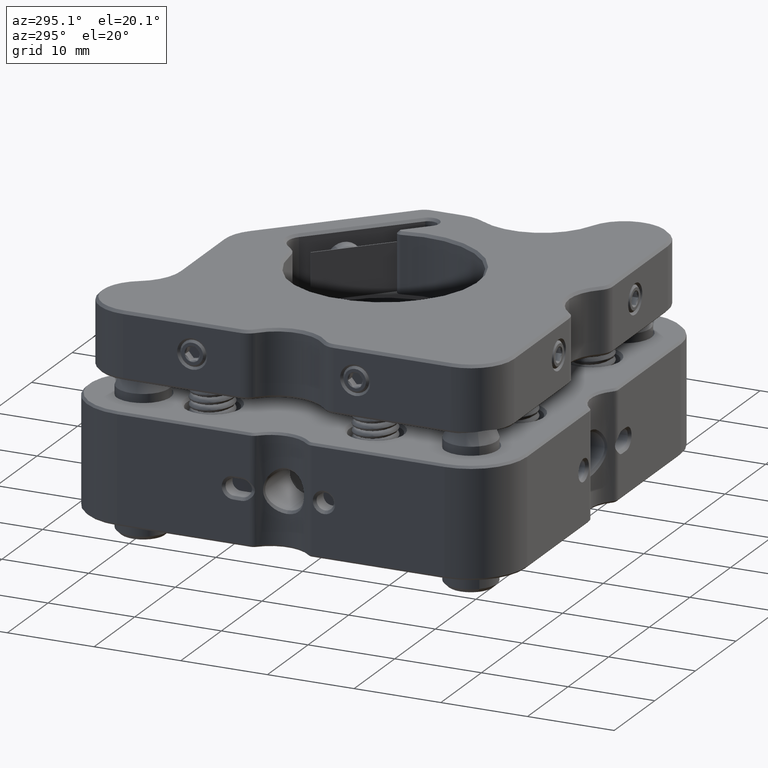
[diagram: clean part render]
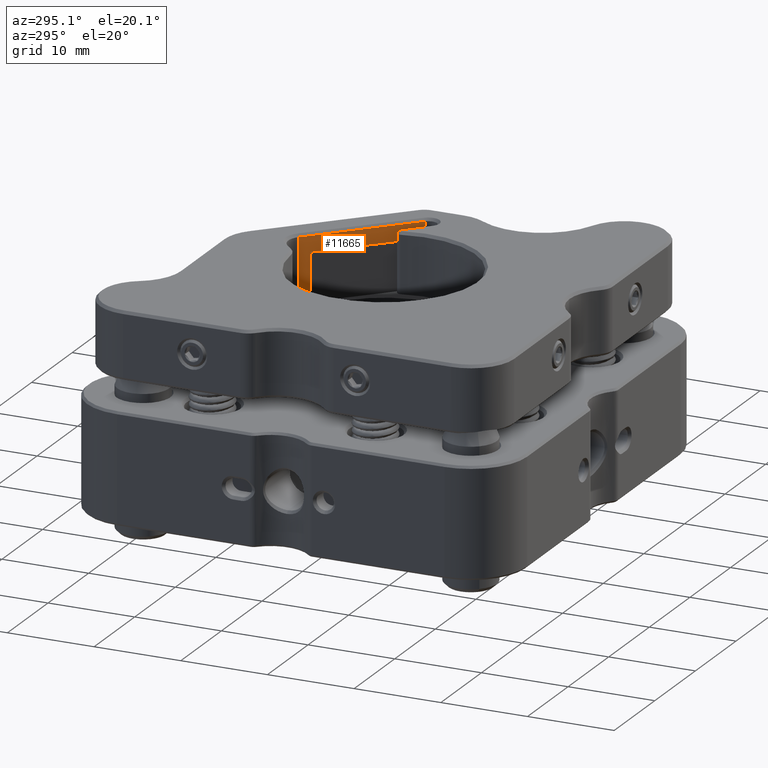
[diagram: same view with one face highlighted and labeled with its STEP entity id]
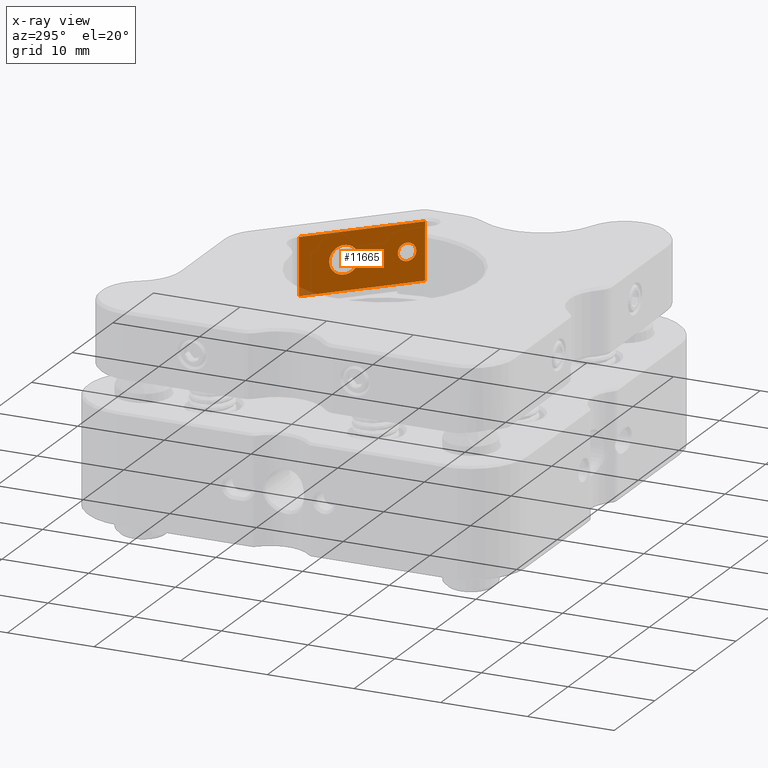
[diagram: x-ray of the same camera — body ghosted, the highlighted face saturated]
A machine part, auxiliary view. The second image highlights one B-rep face of the part: STEP entity #11665.
The next image is the same camera in x-ray: the body ghosted, the highlighted face saturated — about 1% of this face is hidden behind the body in this view.
In plain terms, the highlighted planar face has unit normal (0.7071, 0.7071, 0).
Its self-contained STEP definition (entity closure, byte-faithful):
#468 = ORIENTED_EDGE ( 'NONE', *, *, #14849, .F. ) ;
#799 = CARTESIAN_POINT ( 'NONE',  ( -55.25997654151805705, 9.793428919433670998, 0.3999999999999988565 ) ) ;
#1070 = EDGE_LOOP ( 'NONE', ( #468, #7938 ) ) ;
#1312 = EDGE_LOOP ( 'NONE', ( #22143, #9870, #20309, #5954 ) ) ;
#1343 = EDGE_LOOP ( 'NONE', ( #15341, #27693 ) ) ;
#2110 = CIRCLE ( 'NONE', #8079, 1.024999999999999689 ) ;
#2432 = AXIS2_PLACEMENT_3D ( 'NONE', #24816, #11437, #9273 ) ;
#2712 = LINE ( 'NONE', #6867, #9999 ) ;
#2866 = DIRECTION ( 'NONE',  ( 0.000000000000000000, 0.000000000000000000, 1.000000000000000000 ) ) ;
#4279 = VERTEX_POINT ( 'NONE', #799 ) ;
#4363 = DIRECTION ( 'NONE',  ( -0.7071067811865490160, -0.7071067811865460184, 0.000000000000000000 ) ) ;
#4623 = PLANE ( 'NONE',  #20893 ) ;
#4730 = VECTOR ( 'NONE', #13620, 1000.000000000000000 ) ;
#5257 = LINE ( 'NONE', #14047, #4730 ) ;
#5305 = VERTEX_POINT ( 'NONE', #14081 ) ;
#5346 = VERTEX_POINT ( 'NONE', #27152 ) ;
#5954 = ORIENTED_EDGE ( 'NONE', *, *, #6905, .F. ) ;
#6782 = CARTESIAN_POINT ( 'NONE',  ( -51.47695526217002282, 13.57645019878169634, 0.3999999999999988565 ) ) ;
#6867 = CARTESIAN_POINT ( 'NONE',  ( -59.96223663640859058, 5.091168824543163218, 3.549999999999997158 ) ) ;
#6905 = EDGE_CURVE ( 'NONE', #5305, #11609, #11259, .T. ) ;
#7182 = DIRECTION ( 'NONE',  ( 0.7071067811865460184, -0.7071067811865491270, -0.000000000000000000 ) ) ;
#7938 = ORIENTED_EDGE ( 'NONE', *, *, #27552, .F. ) ;
#8079 = AXIS2_PLACEMENT_3D ( 'NONE', #6782, #13708, #20293 ) ;
#8502 = FACE_BOUND ( 'NONE', #1070, .T. ) ;
#8650 = CARTESIAN_POINT ( 'NONE',  ( -61.37645019878168284, 3.676955262170072292, -22.63907140002025642 ) ) ;
#9273 = DIRECTION ( 'NONE',  ( 0.7071067811865495711, 0.7071067811865454633, 0.000000000000000000 ) ) ;
#9423 = CARTESIAN_POINT ( 'NONE',  ( -52.20173971288622994, 12.85166574806548567, 0.3999999999999987454 ) ) ;
#9637 = LINE ( 'NONE', #18414, #24491 ) ;
#9870 = ORIENTED_EDGE ( 'NONE', *, *, #19268, .T. ) ;
#9939 = CIRCLE ( 'NONE', #11777, 1.650000000000001021 ) ;
#9999 = VECTOR ( 'NONE', #13659, 1000.000000000000114 ) ;
#10664 = FACE_BOUND ( 'NONE', #1343, .T. ) ;
#10687 = CIRCLE ( 'NONE', #11643, 1.024999999999999689 ) ;
#10978 = CARTESIAN_POINT ( 'NONE',  ( -61.37645019878168284, 3.676955262170072292, -3.050000000000000711 ) ) ;
#11259 = LINE ( 'NONE', #10978, #26483 ) ;
#11437 = DIRECTION ( 'NONE',  ( 0.7071067811865460184, -0.7071067811865491270, -0.000000000000000000 ) ) ;
#11609 = VERTEX_POINT ( 'NONE', #21355 ) ;
#11643 = AXIS2_PLACEMENT_3D ( 'NONE', #22998, #7182, #27178 ) ;
#11665 = ADVANCED_FACE ( 'NONE', ( #10664, #8502, #19444 ), #4623, .F. ) ;
#11777 = AXIS2_PLACEMENT_3D ( 'NONE', #19734, #22321, #24330 ) ;
#13130 = DIRECTION ( 'NONE',  ( -0.7071067811865460184, 0.7071067811865490160, 0.000000000000000000 ) ) ;
#13620 = DIRECTION ( 'NONE',  ( 0.000000000000000000, 0.000000000000000000, 1.000000000000000000 ) ) ;
#13659 = DIRECTION ( 'NONE',  ( -0.7071067811865490160, -0.7071067811865460184, 0.000000000000000000 ) ) ;
#13708 = DIRECTION ( 'NONE',  ( 0.7071067811865460184, -0.7071067811865491270, -0.000000000000000000 ) ) ;
#13802 = CARTESIAN_POINT ( 'NONE',  ( -50.75217081145380860, 14.30123464949790701, 0.3999999999999988565 ) ) ;
#14047 = CARTESIAN_POINT ( 'NONE',  ( -50.06274169979690214, 14.99066376115480637, -22.63907140002025642 ) ) ;
#14081 = CARTESIAN_POINT ( 'NONE',  ( -50.06274169979690214, 14.99066376115480459, -3.050000000000000266 ) ) ;
#14797 = EDGE_CURVE ( 'NONE', #23174, #27705, #2110, .T. ) ;
#14849 = EDGE_CURVE ( 'NONE', #4279, #26060, #9939, .T. ) ;
#15341 = ORIENTED_EDGE ( 'NONE', *, *, #14797, .F. ) ;
#15390 = CARTESIAN_POINT ( 'NONE',  ( -59.96223663640859058, 5.091168824543164995, 3.549999999999997158 ) ) ;
#16664 = VERTEX_POINT ( 'NONE', #15390 ) ;
#18414 = CARTESIAN_POINT ( 'NONE',  ( -59.96223663640859058, 5.091168824543164995, 3.849999999999999201 ) ) ;
#19268 = EDGE_CURVE ( 'NONE', #5346, #16664, #2712, .T. ) ;
#19444 = FACE_OUTER_BOUND ( 'NONE', #1312, .T. ) ;
#19733 = DIRECTION ( 'NONE',  ( 0.7071067811865490160, 0.7071067811865460184, 0.000000000000000000 ) ) ;
#19734 = CARTESIAN_POINT ( 'NONE',  ( -56.42670273047585283, 8.626702730475873437, 0.3999999999999988565 ) ) ;
#20293 = DIRECTION ( 'NONE',  ( 0.7071067811865500152, 0.7071067811865449082, 0.000000000000000000 ) ) ;
#20309 = ORIENTED_EDGE ( 'NONE', *, *, #25070, .F. ) ;
#20893 = AXIS2_PLACEMENT_3D ( 'NONE', #8650, #13130, #19733 ) ;
#21355 = CARTESIAN_POINT ( 'NONE',  ( -59.96223663640859058, 5.091168824543164995, -3.050000000000000711 ) ) ;
#22143 = ORIENTED_EDGE ( 'NONE', *, *, #27707, .T. ) ;
#22321 = DIRECTION ( 'NONE',  ( 0.7071067811865460184, -0.7071067811865491270, -0.000000000000000000 ) ) ;
#22998 = CARTESIAN_POINT ( 'NONE',  ( -51.47695526217002282, 13.57645019878169634, 0.3999999999999988565 ) ) ;
#23174 = VERTEX_POINT ( 'NONE', #13802 ) ;
#23582 = CIRCLE ( 'NONE', #2432, 1.650000000000001021 ) ;
#24093 = CARTESIAN_POINT ( 'NONE',  ( -57.59342891943366283, 7.459976541518073212, 0.3999999999999986899 ) ) ;
#24330 = DIRECTION ( 'NONE',  ( 0.7071067811865495711, 0.7071067811865454633, 0.000000000000000000 ) ) ;
#24491 = VECTOR ( 'NONE', #2866, 1000.000000000000000 ) ;
#24816 = CARTESIAN_POINT ( 'NONE',  ( -56.42670273047585283, 8.626702730475873437, 0.3999999999999988565 ) ) ;
#25069 = EDGE_CURVE ( 'NONE', #27705, #23174, #10687, .T. ) ;
#25070 = EDGE_CURVE ( 'NONE', #11609, #16664, #9637, .T. ) ;
#26060 = VERTEX_POINT ( 'NONE', #24093 ) ;
#26483 = VECTOR ( 'NONE', #4363, 1000.000000000000114 ) ;
#27152 = CARTESIAN_POINT ( 'NONE',  ( -50.06274169979690214, 14.99066376115480637, 3.549999999999997602 ) ) ;
#27178 = DIRECTION ( 'NONE',  ( 0.7071067811865500152, 0.7071067811865449082, 0.000000000000000000 ) ) ;
#27552 = EDGE_CURVE ( 'NONE', #26060, #4279, #23582, .T. ) ;
#27693 = ORIENTED_EDGE ( 'NONE', *, *, #25069, .F. ) ;
#27705 = VERTEX_POINT ( 'NONE', #9423 ) ;
#27707 = EDGE_CURVE ( 'NONE', #5305, #5346, #5257, .T. ) ;